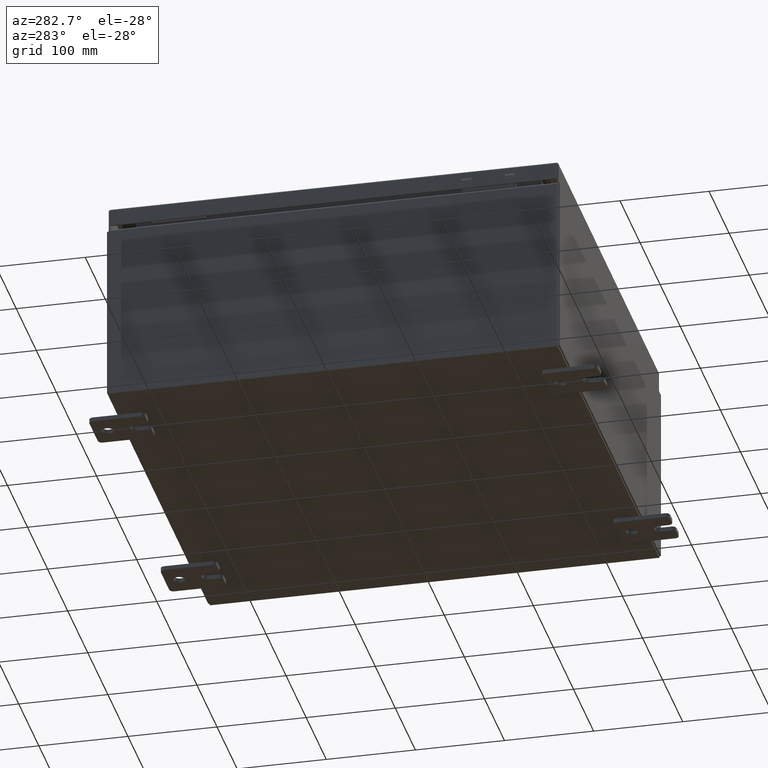
[diagram: clean part render]
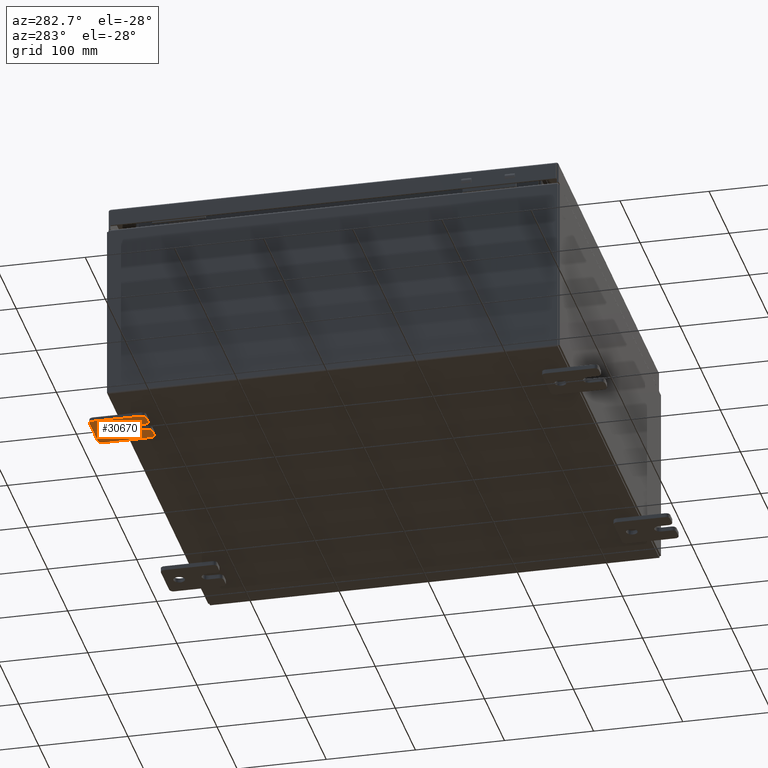
[diagram: same view with one face highlighted and labeled with its STEP entity id]
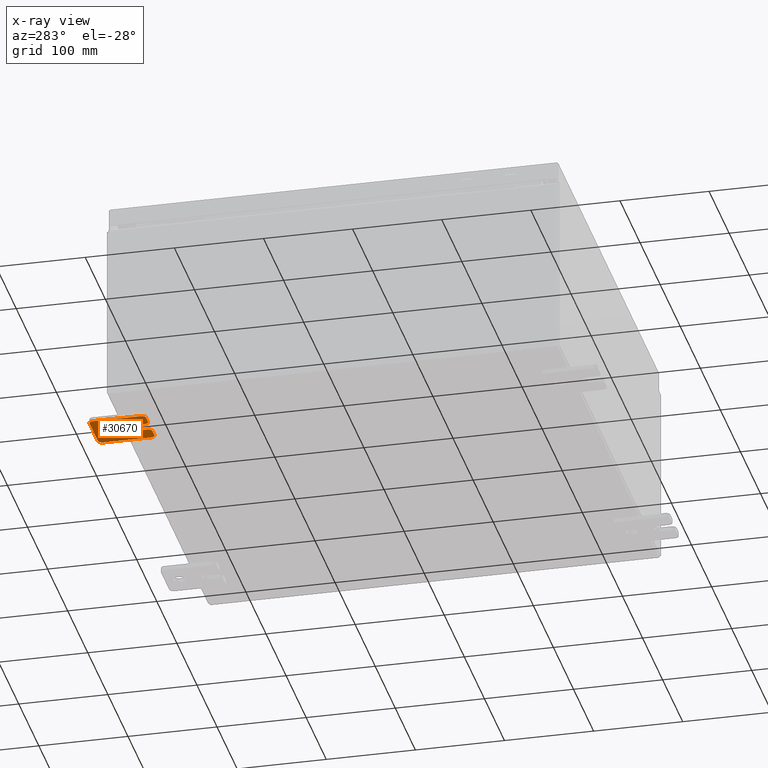
[diagram: x-ray of the same camera — body ghosted, the highlighted face saturated]
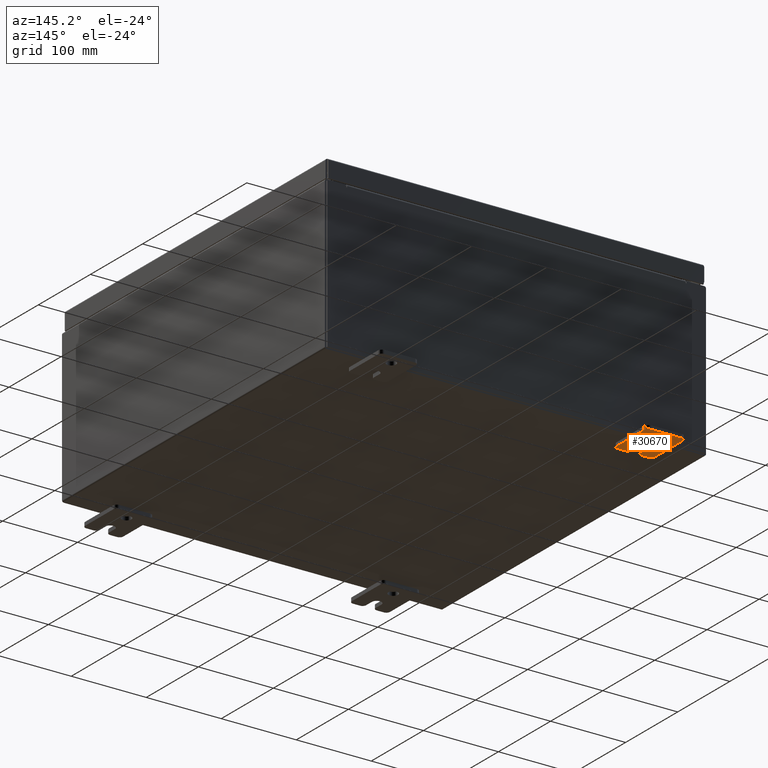
[diagram: same view with one face highlighted and labeled with its STEP entity id]
A machine part, auxiliary view. The second image highlights one B-rep face of the part: STEP entity #30670.
The next image is the same camera in x-ray: the body ghosted, the highlighted face saturated — about 0% of this face is hidden behind the body in this view.
A second angle (auxiliary view) of the same face is appended — the face is thin or edge-on in the first view.
In plain terms, the highlighted planar face has unit normal (0, 0, 1).
Its self-contained STEP definition (entity closure, byte-faithful):
#919 = CARTESIAN_POINT ( 'NONE',  ( -0.1879999999999997500, 0.0000000000000000000, 0.0000000000000000000 ) ) ;
#1097 = VERTEX_POINT ( 'NONE', #43579 ) ;
#1164 = CARTESIAN_POINT ( 'NONE',  ( -0.1879999999999997500, -1.060000000000002300, 0.8099999999999981700 ) ) ;
#1367 = LINE ( 'NONE', #15717, #39022 ) ;
#1796 = VERTEX_POINT ( 'NONE', #61216 ) ;
#2161 = CARTESIAN_POINT ( 'NONE',  ( -0.1879999999999997500, 1.249999999999997800, 0.8099999999999938400 ) ) ;
#2352 = AXIS2_PLACEMENT_3D ( 'NONE', #16711, #50954, #21592 ) ;
#2645 = VECTOR ( 'NONE', #30617, 39.37007874015748100 ) ;
#2818 = VERTEX_POINT ( 'NONE', #60038 ) ;
#3056 = CARTESIAN_POINT ( 'NONE',  ( -0.1879999999999997500, -1.060000000000004500, -0.4400000000000007800 ) ) ;
#3102 = AXIS2_PLACEMENT_3D ( 'NONE', #44028, #14710, #48974 ) ;
#3409 = VERTEX_POINT ( 'NONE', #4366 ) ;
#3694 = VERTEX_POINT ( 'NONE', #6624 ) ;
#4097 = EDGE_CURVE ( 'NONE', #1796, #21690, #36317, .T. ) ;
#4366 = CARTESIAN_POINT ( 'NONE',  ( -0.1880000000000009700, 0.6249999999999988900, -0.2499999999999999200 ) ) ;
#5318 = DIRECTION ( 'NONE',  ( -6.556435184794182400E-016, -1.000000000000000000, -1.639108796198545600E-016 ) ) ;
#5918 = EDGE_CURVE ( 'NONE', #37396, #2818, #35248, .T. ) ;
#6111 = DIRECTION ( 'NONE',  ( 0.0000000000000000000, 0.0000000000000000000, -1.000000000000000000 ) ) ;
#6202 = CARTESIAN_POINT ( 'NONE',  ( -0.1879999999999997500, 1.059999999999993600, -1.000000000000010000 ) ) ;
#6624 = CARTESIAN_POINT ( 'NONE',  ( -0.1880000000000004200, -1.060000000000004500, -0.2499999999999998100 ) ) ;
#6628 = CIRCLE ( 'NONE', #15484, 0.1900000000000011100 ) ;
#6708 = LINE ( 'NONE', #63461, #29755 ) ;
#7994 = EDGE_CURVE ( 'NONE', #12309, #21690, #32075, .T. ) ;
#8001 = DIRECTION ( 'NONE',  ( 0.0000000000000000000, 7.189073667537492800E-016, -1.000000000000000000 ) ) ;
#8453 = ORIENTED_EDGE ( 'NONE', *, *, #31475, .F. ) ;
#8941 = LINE ( 'NONE', #24850, #43489 ) ;
#9194 = ORIENTED_EDGE ( 'NONE', *, *, #23227, .F. ) ;
#10828 = DIRECTION ( 'NONE',  ( 1.000000000000000000, 0.0000000000000000000, 0.0000000000000000000 ) ) ;
#12163 = CIRCLE ( 'NONE', #25411, 0.1900000000000011100 ) ;
#12309 = VERTEX_POINT ( 'NONE', #63360 ) ;
#12807 = CARTESIAN_POINT ( 'NONE',  ( -0.1880000000000001400, -0.6249999999999988900, 0.0000000000000000000 ) ) ;
#13508 = CARTESIAN_POINT ( 'NONE',  ( -0.1879999999999997500, -1.250000000000002200, 0.8099999999999981700 ) ) ;
#13895 = CARTESIAN_POINT ( 'NONE',  ( -0.1879999999999997500, -1.250000000000004400, -1.000000000000005800 ) ) ;
#14139 = AXIS2_PLACEMENT_3D ( 'NONE', #1164, #35560, #6111 ) ;
#14710 = DIRECTION ( 'NONE',  ( 1.000000000000000000, 0.0000000000000000000, -5.163192708025532000E-017 ) ) ;
#15484 = AXIS2_PLACEMENT_3D ( 'NONE', #24600, #58808, #29535 ) ;
#15717 = CARTESIAN_POINT ( 'NONE',  ( -0.1879999999999997500, 1.249999999999997800, 0.9999999999999947800 ) ) ;
#15862 = VERTEX_POINT ( 'NONE', #20472 ) ;
#16711 = CARTESIAN_POINT ( 'NONE',  ( -0.1879999999999997500, -1.060000000000002300, 0.4400000000000018900 ) ) ;
#16964 = FACE_OUTER_BOUND ( 'NONE', #55563, .T. ) ;
#17328 = LINE ( 'NONE', #54920, #2645 ) ;
#17368 = CIRCLE ( 'NONE', #27090, 0.2499999999999999200 ) ;
#17421 = ORIENTED_EDGE ( 'NONE', *, *, #52743, .F. ) ;
#17448 = CARTESIAN_POINT ( 'NONE',  ( -0.1879999999999997500, 1.059999999999993600, -0.8100000000000091600 ) ) ;
#17775 = DIRECTION ( 'NONE',  ( -6.829619984160660000E-016, -1.000000000000000000, 0.0000000000000000000 ) ) ;
#17895 = AXIS2_PLACEMENT_3D ( 'NONE', #55667, #26399, #60626 ) ;
#17973 = CARTESIAN_POINT ( 'NONE',  ( -0.1880000000000001400, -0.6249999999999988900, -0.2499999999999998100 ) ) ;
#19917 = CARTESIAN_POINT ( 'NONE',  ( -0.1880000000000009700, 0.6249999999999988900, 0.0000000000000000000 ) ) ;
#20472 = CARTESIAN_POINT ( 'NONE',  ( -0.1879999999999997500, -1.250000000000002200, 0.4400000000000018900 ) ) ;
#21162 = EDGE_CURVE ( 'NONE', #1796, #3694, #12163, .T. ) ;
#21463 = VECTOR ( 'NONE', #54983, 39.37007874015748100 ) ;
#21538 = EDGE_CURVE ( 'NONE', #53099, #2818, #1367, .T. ) ;
#21592 = DIRECTION ( 'NONE',  ( 0.0000000000000000000, 0.0000000000000000000, -1.000000000000000000 ) ) ;
#21690 = VERTEX_POINT ( 'NONE', #31808 ) ;
#22331 = DIRECTION ( 'NONE',  ( 0.0000000000000000000, 0.0000000000000000000, -1.000000000000000000 ) ) ;
#22541 = ORIENTED_EDGE ( 'NONE', *, *, #45408, .T. ) ;
#22733 = VERTEX_POINT ( 'NONE', #2161 ) ;
#23215 = VECTOR ( 'NONE', #62910, 39.37007874015748100 ) ;
#23227 = EDGE_CURVE ( 'NONE', #52778, #3694, #8941, .T. ) ;
#24310 = DIRECTION ( 'NONE',  ( 0.0000000000000000000, 1.639108796198553600E-015, 1.000000000000000000 ) ) ;
#24440 = ORIENTED_EDGE ( 'NONE', *, *, #21162, .T. ) ;
#24600 = CARTESIAN_POINT ( 'NONE',  ( -0.1879999999999997500, 1.059999999999995800, 0.8099999999999938400 ) ) ;
#24807 = DIRECTION ( 'NONE',  ( 0.0000000000000000000, 0.0000000000000000000, -1.000000000000000000 ) ) ;
#24850 = CARTESIAN_POINT ( 'NONE',  ( -0.1880000000000001400, -0.6249999999999988900, -0.2499999999999998100 ) ) ;
#25303 = EDGE_CURVE ( 'NONE', #32634, #1097, #17328, .T. ) ;
#25411 = AXIS2_PLACEMENT_3D ( 'NONE', #3056, #37441, #8001 ) ;
#26399 = DIRECTION ( 'NONE',  ( -1.000000000000000000, -0.0000000000000000000, -0.0000000000000000000 ) ) ;
#26529 = CIRCLE ( 'NONE', #31568, 0.2499999999999999200 ) ;
#26857 = CARTESIAN_POINT ( 'NONE',  ( -0.1879999999999997500, 1.059999999999995800, 0.9999999999999947800 ) ) ;
#27072 = VERTEX_POINT ( 'NONE', #6202 ) ;
#27090 = AXIS2_PLACEMENT_3D ( 'NONE', #12807, #47105, #17775 ) ;
#27315 = AXIS2_PLACEMENT_3D ( 'NONE', #17448, #51642, #22331 ) ;
#28083 = VECTOR ( 'NONE', #43232, 39.37007874015748100 ) ;
#29023 = ORIENTED_EDGE ( 'NONE', *, *, #5918, .T. ) ;
#29535 = DIRECTION ( 'NONE',  ( 0.0000000000000000000, 0.0000000000000000000, -1.000000000000000000 ) ) ;
#29625 = ORIENTED_EDGE ( 'NONE', *, *, #35592, .T. ) ;
#29755 = VECTOR ( 'NONE', #24310, 39.37007874015748100 ) ;
#30154 = PLANE ( 'NONE',  #57527 ) ;
#30617 = DIRECTION ( 'NONE',  ( 6.556435184794182400E-016, 1.000000000000000000, 0.0000000000000000000 ) ) ;
#30629 = ORIENTED_EDGE ( 'NONE', *, *, #21538, .F. ) ;
#30670 = ADVANCED_FACE ( 'NONE', ( #57493, #16964 ), #30154, .F. ) ;
#31475 = EDGE_CURVE ( 'NONE', #37396, #15862, #34570, .T. ) ;
#31568 = AXIS2_PLACEMENT_3D ( 'NONE', #19917, #54108, #24807 ) ;
#31808 = CARTESIAN_POINT ( 'NONE',  ( -0.1879999999999997500, -1.250000000000004400, -0.8100000000000047200 ) ) ;
#32075 = CIRCLE ( 'NONE', #17895, 0.1900000000000011100 ) ;
#32326 = CIRCLE ( 'NONE', #27315, 0.1900000000000011100 ) ;
#32634 = VERTEX_POINT ( 'NONE', #48130 ) ;
#34570 = LINE ( 'NONE', #35628, #21463 ) ;
#35248 = CIRCLE ( 'NONE', #14139, 0.1900000000000011100 ) ;
#35390 = CARTESIAN_POINT ( 'NONE',  ( -0.1879999999999997500, 1.249999999999995800, -0.8100000000000091600 ) ) ;
#35560 = DIRECTION ( 'NONE',  ( -1.000000000000000000, -0.0000000000000000000, -0.0000000000000000000 ) ) ;
#35592 = EDGE_CURVE ( 'NONE', #53099, #22733, #6628, .T. ) ;
#35628 = CARTESIAN_POINT ( 'NONE',  ( -0.1879999999999997500, -1.250000000000002200, 0.9999999999999992200 ) ) ;
#36245 = EDGE_CURVE ( 'NONE', #48573, #3409, #51817, .T. ) ;
#36317 = LINE ( 'NONE', #48203, #23215 ) ;
#36807 = EDGE_CURVE ( 'NONE', #3409, #48573, #26529, .T. ) ;
#37396 = VERTEX_POINT ( 'NONE', #13508 ) ;
#37441 = DIRECTION ( 'NONE',  ( -1.000000000000000000, -0.0000000000000000000, -0.0000000000000000000 ) ) ;
#38323 = VERTEX_POINT ( 'NONE', #35390 ) ;
#38483 = EDGE_CURVE ( 'NONE', #32634, #15862, #60074, .T. ) ;
#39022 = VECTOR ( 'NONE', #45491, 39.37007874015748100 ) ;
#41103 = LINE ( 'NONE', #13895, #28083 ) ;
#43232 = DIRECTION ( 'NONE',  ( 0.0000000000000000000, 1.000000000000000000, -1.639108796198558100E-015 ) ) ;
#43489 = VECTOR ( 'NONE', #5318, 39.37007874015748100 ) ;
#43579 = CARTESIAN_POINT ( 'NONE',  ( -0.1880000000000001400, -0.6249999999999988900, 0.2500000000000008900 ) ) ;
#44028 = CARTESIAN_POINT ( 'NONE',  ( -0.1880000000000009700, 0.6249999999999988900, 0.0000000000000000000 ) ) ;
#45153 = DIRECTION ( 'NONE',  ( 0.0000000000000000000, 0.0000000000000000000, -1.000000000000000000 ) ) ;
#45408 = EDGE_CURVE ( 'NONE', #38323, #27072, #32326, .T. ) ;
#45491 = DIRECTION ( 'NONE',  ( 0.0000000000000000000, -1.000000000000000000, 1.639108796198558100E-015 ) ) ;
#47105 = DIRECTION ( 'NONE',  ( -1.000000000000000000, 6.523827964459549700E-016, 5.163192708025532000E-017 ) ) ;
#48130 = CARTESIAN_POINT ( 'NONE',  ( -0.1880000000000004200, -1.060000000000002300, 0.2500000000000008900 ) ) ;
#48203 = CARTESIAN_POINT ( 'NONE',  ( -0.1879999999999997500, -1.250000000000002200, 0.9999999999999992200 ) ) ;
#48337 = ORIENTED_EDGE ( 'NONE', *, *, #38483, .T. ) ;
#48573 = VERTEX_POINT ( 'NONE', #58518 ) ;
#48585 = EDGE_CURVE ( 'NONE', #38323, #22733, #6708, .T. ) ;
#48974 = DIRECTION ( 'NONE',  ( 0.0000000000000000000, 0.0000000000000000000, -1.000000000000000000 ) ) ;
#50311 = EDGE_LOOP ( 'NONE', ( #62782, #63469 ) ) ;
#50634 = EDGE_CURVE ( 'NONE', #12309, #27072, #41103, .T. ) ;
#50954 = DIRECTION ( 'NONE',  ( -1.000000000000000000, -0.0000000000000000000, -0.0000000000000000000 ) ) ;
#51444 = ORIENTED_EDGE ( 'NONE', *, *, #48585, .F. ) ;
#51642 = DIRECTION ( 'NONE',  ( -1.000000000000000000, -0.0000000000000000000, -0.0000000000000000000 ) ) ;
#51817 = CIRCLE ( 'NONE', #3102, 0.2499999999999999200 ) ;
#52743 = EDGE_CURVE ( 'NONE', #1097, #52778, #17368, .T. ) ;
#52778 = VERTEX_POINT ( 'NONE', #17973 ) ;
#53099 = VERTEX_POINT ( 'NONE', #26857 ) ;
#54108 = DIRECTION ( 'NONE',  ( 1.000000000000000000, 0.0000000000000000000, -5.163192708025532000E-017 ) ) ;
#54116 = ORIENTED_EDGE ( 'NONE', *, *, #50634, .F. ) ;
#54903 = ORIENTED_EDGE ( 'NONE', *, *, #4097, .F. ) ;
#54920 = CARTESIAN_POINT ( 'NONE',  ( -0.1880000000000005600, -1.250000000000004400, 0.2500000000000008900 ) ) ;
#54983 = DIRECTION ( 'NONE',  ( 0.0000000000000000000, -1.639108796198553600E-015, -1.000000000000000000 ) ) ;
#55563 = EDGE_LOOP ( 'NONE', ( #8453, #29023, #30629, #29625, #51444, #22541, #54116, #58754, #54903, #24440, #9194, #17421, #61145, #48337 ) ) ;
#55667 = CARTESIAN_POINT ( 'NONE',  ( -0.1879999999999997500, -1.060000000000004500, -0.8100000000000047200 ) ) ;
#57493 = FACE_BOUND ( 'NONE', #50311, .T. ) ;
#57527 = AXIS2_PLACEMENT_3D ( 'NONE', #919, #10828, #45153 ) ;
#58518 = CARTESIAN_POINT ( 'NONE',  ( -0.1880000000000009700, 0.6249999999999988900, 0.2499999999999999200 ) ) ;
#58754 = ORIENTED_EDGE ( 'NONE', *, *, #7994, .T. ) ;
#58808 = DIRECTION ( 'NONE',  ( -1.000000000000000000, -0.0000000000000000000, -0.0000000000000000000 ) ) ;
#60038 = CARTESIAN_POINT ( 'NONE',  ( -0.1879999999999997500, -1.060000000000000300, 0.9999999999999992200 ) ) ;
#60074 = CIRCLE ( 'NONE', #2352, 0.1900000000000011400 ) ;
#60626 = DIRECTION ( 'NONE',  ( 0.0000000000000000000, 0.0000000000000000000, -1.000000000000000000 ) ) ;
#61145 = ORIENTED_EDGE ( 'NONE', *, *, #25303, .F. ) ;
#61216 = CARTESIAN_POINT ( 'NONE',  ( -0.1879999999999997500, -1.250000000000004400, -0.4400000000000007800 ) ) ;
#62782 = ORIENTED_EDGE ( 'NONE', *, *, #36807, .T. ) ;
#62910 = DIRECTION ( 'NONE',  ( 0.0000000000000000000, -1.639108796198553600E-015, -1.000000000000000000 ) ) ;
#63360 = CARTESIAN_POINT ( 'NONE',  ( -0.1879999999999997500, -1.060000000000004500, -1.000000000000006900 ) ) ;
#63461 = CARTESIAN_POINT ( 'NONE',  ( -0.1879999999999997500, 1.249999999999995800, -1.000000000000010000 ) ) ;
#63469 = ORIENTED_EDGE ( 'NONE', *, *, #36245, .T. ) ;